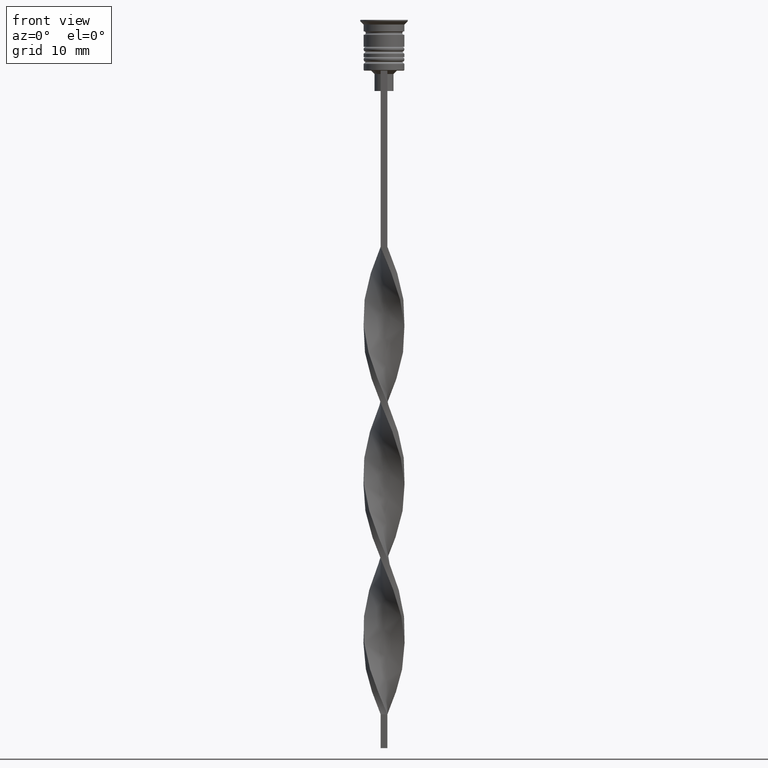
[diagram: clean part render]
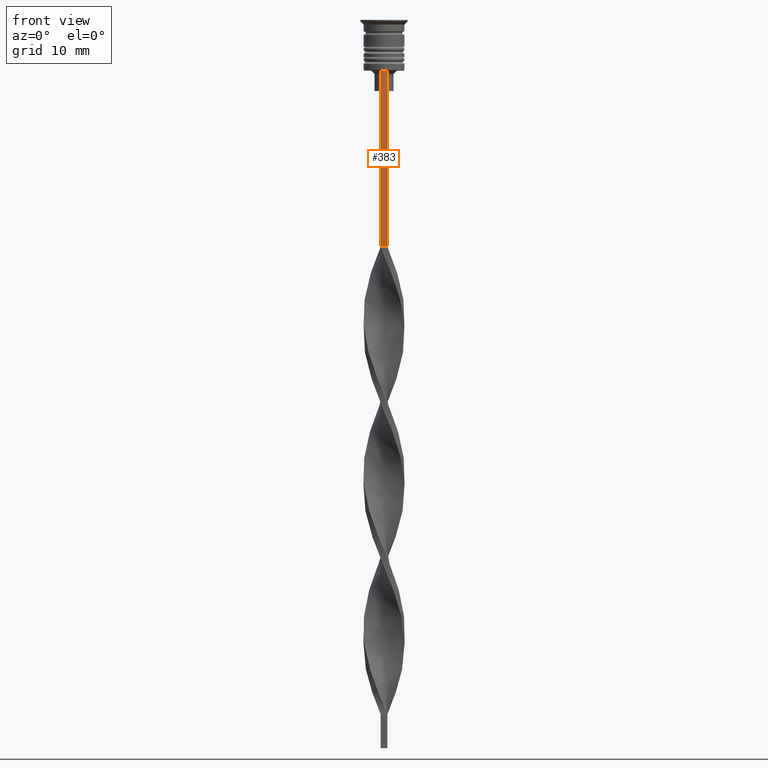
[diagram: same view with one face highlighted and labeled with its STEP entity id]
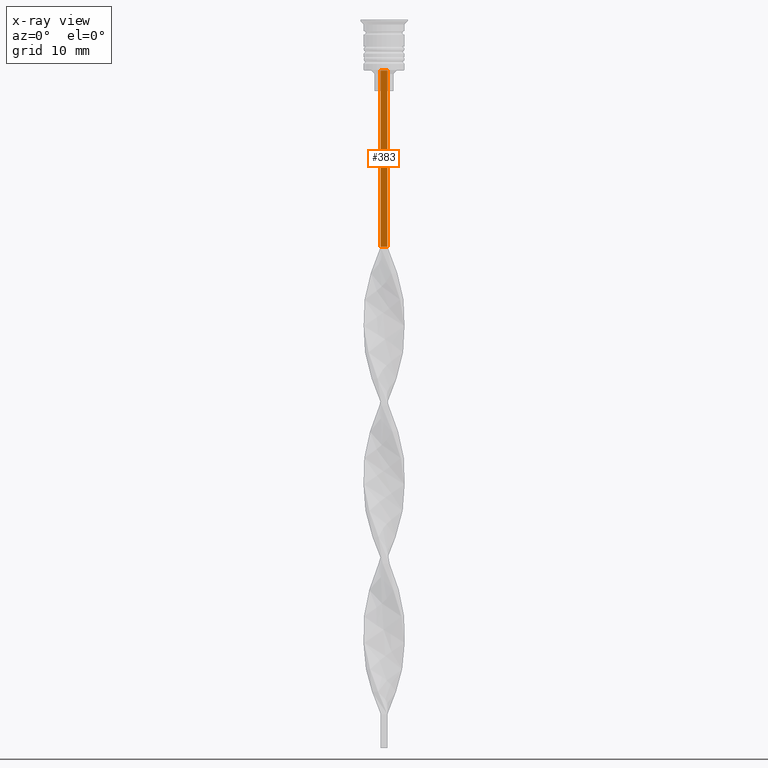
[diagram: x-ray of the same camera — body ghosted, the highlighted face saturated]
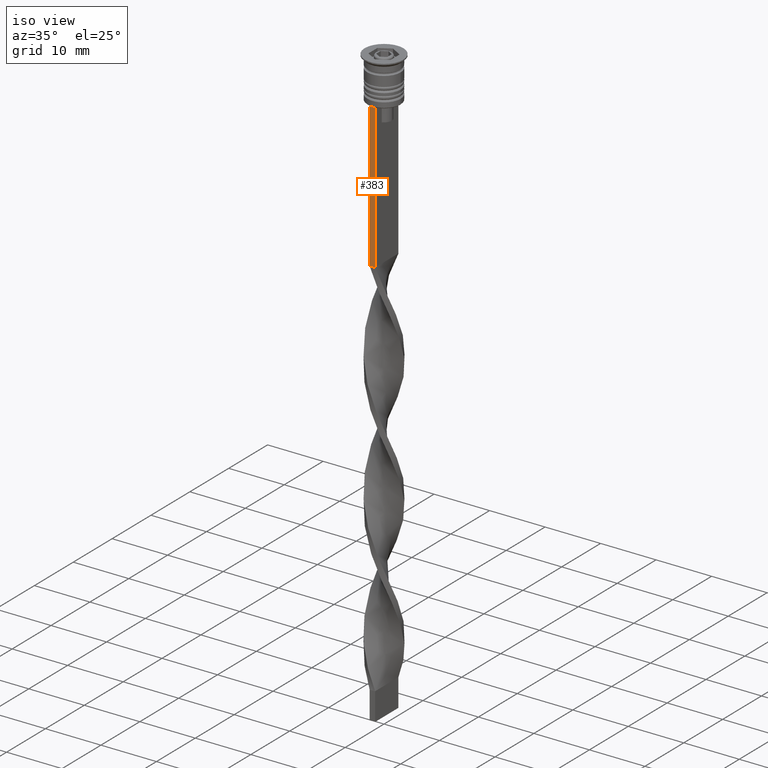
[diagram: same view with one face highlighted and labeled with its STEP entity id]
A machine part, front view. The second image highlights one B-rep face of the part: STEP entity #383.
The next image is the same camera in x-ray: the body ghosted, the highlighted face saturated — about 0% of this face is hidden behind the body in this view.
A second angle (iso view) of the same face is appended — the face is thin or edge-on in the first view.
In plain terms, the highlighted planar face has unit normal (0, -1, -0).
Its self-contained STEP definition (entity closure, byte-faithful):
#24 = EDGE_LOOP ( 'NONE', ( #1791, #2918, #3302, #2463 ) ) ;
#47 = AXIS2_PLACEMENT_3D ( 'NONE', #503, #479, #1040 ) ;
#107 = VECTOR ( 'NONE', #2207, 1000.000000000000000 ) ;
#262 = PLANE ( 'NONE',  #47 ) ;
#383 = ADVANCED_FACE ( 'NONE', ( #1771 ), #262, .T. ) ;
#436 = VERTEX_POINT ( 'NONE', #2074 ) ;
#479 = DIRECTION ( 'NONE',  ( 0.000000000000000000, -1.000000000000000000, -0.000000000000000000 ) ) ;
#500 = EDGE_CURVE ( 'NONE', #436, #2151, #1718, .T. ) ;
#503 = CARTESIAN_POINT ( 'NONE',  ( 0.4999999999999998890, -3.000000000000000000, -1.417237469701779329 ) ) ;
#847 = LINE ( 'NONE', #2141, #3280 ) ;
#926 = CARTESIAN_POINT ( 'NONE',  ( 0.4999999999999998890, -3.000000000000000000, -7.500000000000000000 ) ) ;
#1040 = DIRECTION ( 'NONE',  ( 0.000000000000000000, 0.000000000000000000, -1.000000000000000000 ) ) ;
#1072 = DIRECTION ( 'NONE',  ( 1.000000000000000000, 0.000000000000000000, 0.000000000000000000 ) ) ;
#1152 = LINE ( 'NONE', #1649, #1932 ) ;
#1212 = VECTOR ( 'NONE', #3031, 1000.000000000000000 ) ;
#1432 = CARTESIAN_POINT ( 'NONE',  ( -0.5000000000000001110, -3.000000000000000000, -33.50000000000000000 ) ) ;
#1491 = CARTESIAN_POINT ( 'NONE',  ( 0.4999999999999998890, -3.000000000000000000, -33.50000000000000000 ) ) ;
#1649 = CARTESIAN_POINT ( 'NONE',  ( -0.5000000000000001110, -3.000000000000000000, -1.417237469701779329 ) ) ;
#1669 = LINE ( 'NONE', #2977, #107 ) ;
#1695 = CARTESIAN_POINT ( 'NONE',  ( -0.5000000000000001110, -3.000000000000000000, -7.500000000000000000 ) ) ;
#1718 = LINE ( 'NONE', #1491, #1212 ) ;
#1771 = FACE_OUTER_BOUND ( 'NONE', #24, .T. ) ;
#1791 = ORIENTED_EDGE ( 'NONE', *, *, #2844, .F. ) ;
#1932 = VECTOR ( 'NONE', #2173, 1000.000000000000000 ) ;
#2074 = CARTESIAN_POINT ( 'NONE',  ( 0.4999999999999998890, -3.000000000000000000, -33.50000000000000000 ) ) ;
#2076 = EDGE_CURVE ( 'NONE', #2358, #436, #1669, .T. ) ;
#2123 = EDGE_CURVE ( 'NONE', #2636, #2151, #1152, .T. ) ;
#2141 = CARTESIAN_POINT ( 'NONE',  ( 0.4999999999999998890, -3.000000000000000000, -7.500000000000000000 ) ) ;
#2151 = VERTEX_POINT ( 'NONE', #1432 ) ;
#2173 = DIRECTION ( 'NONE',  ( 0.000000000000000000, 0.000000000000000000, -1.000000000000000000 ) ) ;
#2207 = DIRECTION ( 'NONE',  ( 0.000000000000000000, 0.000000000000000000, -1.000000000000000000 ) ) ;
#2358 = VERTEX_POINT ( 'NONE', #926 ) ;
#2463 = ORIENTED_EDGE ( 'NONE', *, *, #2076, .F. ) ;
#2636 = VERTEX_POINT ( 'NONE', #1695 ) ;
#2844 = EDGE_CURVE ( 'NONE', #2636, #2358, #847, .T. ) ;
#2918 = ORIENTED_EDGE ( 'NONE', *, *, #2123, .T. ) ;
#2977 = CARTESIAN_POINT ( 'NONE',  ( 0.4999999999999998890, -3.000000000000000000, -1.417237469701779329 ) ) ;
#3031 = DIRECTION ( 'NONE',  ( -1.000000000000000000, 0.000000000000000000, 0.000000000000000000 ) ) ;
#3280 = VECTOR ( 'NONE', #1072, 1000.000000000000000 ) ;
#3302 = ORIENTED_EDGE ( 'NONE', *, *, #500, .F. ) ;